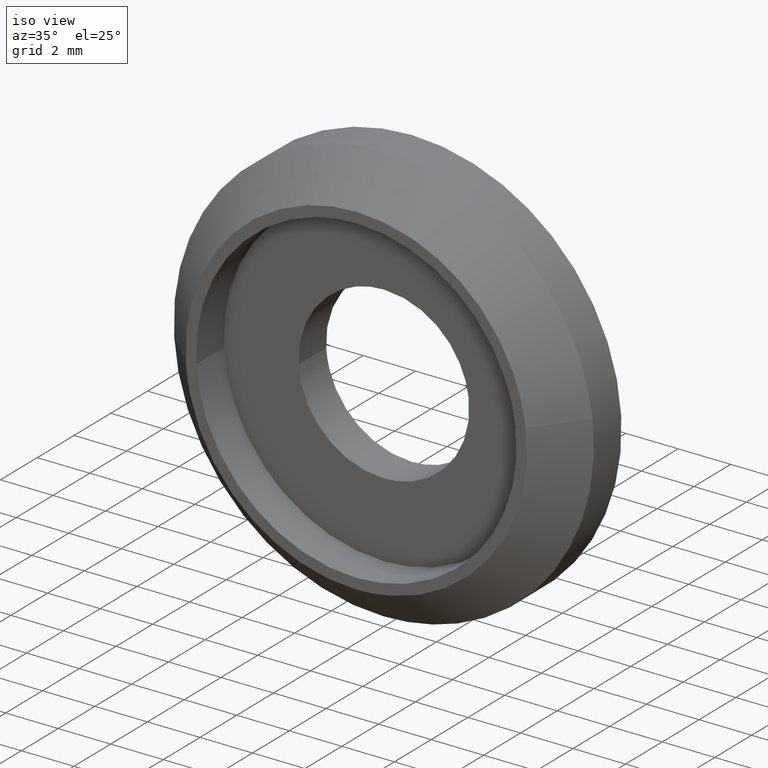
[diagram: clean part render]
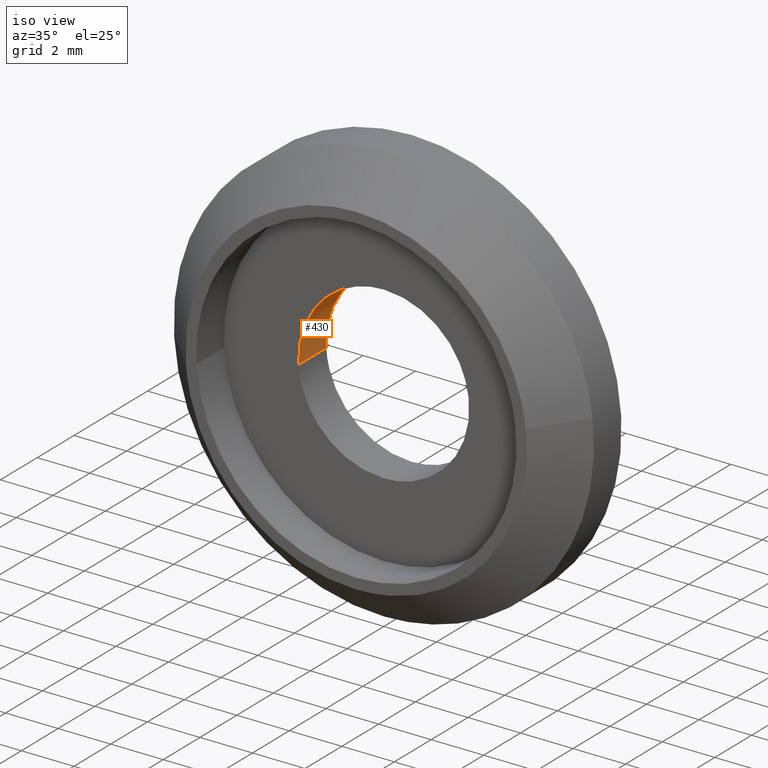
[diagram: same view with one face highlighted and labeled with its STEP entity id]
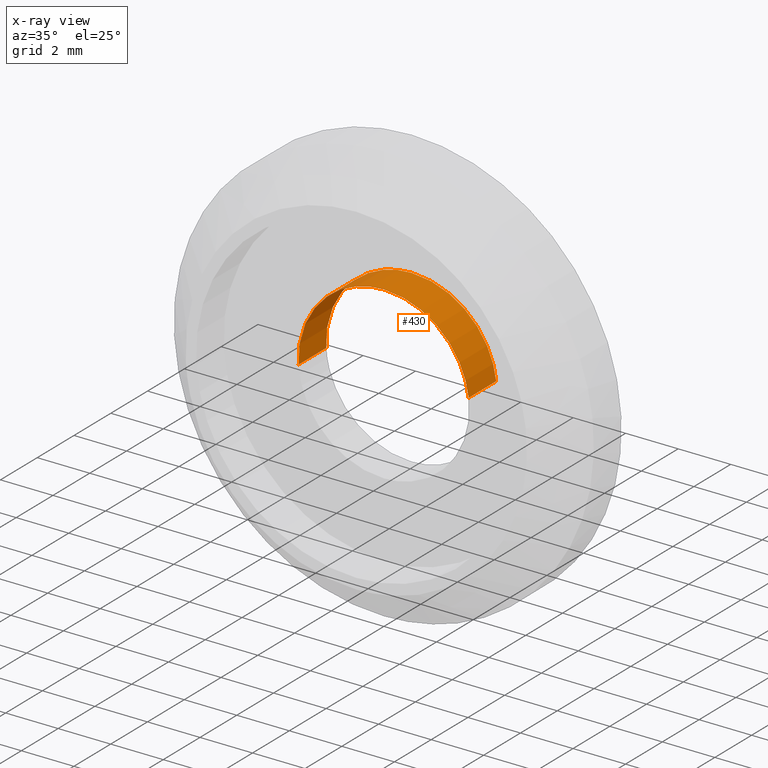
[diagram: x-ray of the same camera — body ghosted, the highlighted face saturated]
A machine part, iso view. The second image highlights one B-rep face of the part: STEP entity #430.
The next image is the same camera in x-ray: the body ghosted, the highlighted face saturated — about 0% of this face is hidden behind the body in this view.
In plain terms, the highlighted face is a freeform B-spline surface patch.
Its self-contained STEP definition (entity closure, byte-faithful):
#267=CARTESIAN_POINT('',(3.227281486811727,1.500000000000071,0.383606836308235));
#268=VERTEX_POINT('',#267);
#286=CARTESIAN_POINT('',(-3.243938286670342,1.499999999999952,-0.198404617548119));
#287=VERTEX_POINT('',#286);
#301=CARTESIAN_POINT('',(-3.243938284306497,3.469447E-017,-0.198404656197849));
#302=VERTEX_POINT('',#301);
#303=CARTESIAN_POINT('',(-3.243938284306497,3.469447E-017,-0.198404656197849));
#304=CARTESIAN_POINT('',(-3.243938286670342,1.499999999999952,-0.198404617548119));
#305=QUASI_UNIFORM_CURVE('',1,(#303,#304),.UNSPECIFIED.,.F.,.U.);
#306=EDGE_CURVE('',#302,#287,#305,.T.);
#323=CARTESIAN_POINT('',(3.227281480315944,3.194357E-017,0.383606890957840));
#324=VERTEX_POINT('',#323);
#340=CARTESIAN_POINT('',(3.227281480315944,3.194357E-017,0.383606890957840));
#341=CARTESIAN_POINT('',(3.227281486811727,1.500000000000071,0.383606836308235));
#342=QUASI_UNIFORM_CURVE('',1,(#340,#341),.UNSPECIFIED.,.F.,.U.);
#343=EDGE_CURVE('',#324,#268,#342,.T.);
#348=CARTESIAN_POINT('',(-3.243938094871067,-0.037500000000000,-0.198407753488285));
#349=CARTESIAN_POINT('',(-3.442345848359353,-0.037500000000000,3.045530341382781));
#350=CARTESIAN_POINT('',(-0.198407753488285,-0.037500000000000,3.243938094871067));
#351=CARTESIAN_POINT('',(2.865016345228379,-0.037500000000000,3.431305139380714));
#352=CARTESIAN_POINT('',(3.227280960681916,-0.037500000000000,0.383611262634465));
#353=CARTESIAN_POINT('',(-3.243938094871067,1.538437500000000,-0.198407753488285));
#354=CARTESIAN_POINT('',(-3.442345848359353,1.538437500000001,3.045530341382781));
#355=CARTESIAN_POINT('',(-0.198407753488285,1.538437500000000,3.243938094871067));
#356=CARTESIAN_POINT('',(2.865016345228379,1.538437500000000,3.431305139380714));
#357=CARTESIAN_POINT('',(3.227280960681916,1.538437500000000,0.383611262634465));
#365=(BOUNDED_SURFACE()B_SPLINE_SURFACE(2,1,((#348,#353),(#349,#354),(#350,#355),(#351,#356),(#352,#357)),.UNSPECIFIED.,.F.,.F.,.U.)B_SPLINE_SURFACE_WITH_KNOTS((3,2,3),(2,2),(0.0,5.384776310850235,10.554161569266460),(0.0,1.0),.UNSPECIFIED.)GEOMETRIC_REPRESENTATION_ITEM()RATIONAL_B_SPLINE_SURFACE(((1.0,1.0),(0.707106781186548,0.707106781186548),(1.0,1.0),(0.718822509939086,0.718822509939086),(0.977505800795127,0.977505800795127)))REPRESENTATION_ITEM('')SURFACE());
#366=CARTESIAN_POINT('',(0.0,1.500000000000000,3.250000000000000));
#367=VERTEX_POINT('',#366);
#368=CARTESIAN_POINT('',(0.0,1.500000000000000,3.250000000000000));
#369=CARTESIAN_POINT('',(2.886571196239680,1.500000000000001,3.250000000000000));
#370=CARTESIAN_POINT('',(3.227281486811727,1.500000000000071,0.383606836308235));
#378=(BOUNDED_CURVE()B_SPLINE_CURVE(2,(#368,#369,#370),.UNSPECIFIED.,.F.,.U.)B_SPLINE_CURVE_WITH_KNOTS((3,3),(0.0,0.229562705309400),.UNSPECIFIED.)CURVE()GEOMETRIC_REPRESENTATION_ITEM()RATIONAL_B_SPLINE_CURVE((1.0,0.731050561289623,0.956027208513637))REPRESENTATION_ITEM(''));
#379=EDGE_CURVE('',#367,#268,#378,.T.);
#380=ORIENTED_EDGE('',*,*,#379,.T.);
#381=ORIENTED_EDGE('',*,*,#343,.F.);
#382=CARTESIAN_POINT('',(0.0,0.0,3.250000000000000));
#383=VERTEX_POINT('',#382);
#384=CARTESIAN_POINT('',(0.0,0.0,3.250000000000000));
#385=CARTESIAN_POINT('',(2.886571147015454,0.0,3.250000000000000));
#386=CARTESIAN_POINT('',(3.227281480315944,3.194357E-017,0.383606890957840));
#394=(BOUNDED_CURVE()B_SPLINE_CURVE(2,(#384,#385,#386),.UNSPECIFIED.,.F.,.U.)B_SPLINE_CURVE_WITH_KNOTS((3,3),(0.0,0.229562702447560),.UNSPECIFIED.)CURVE()GEOMETRIC_REPRESENTATION_ITEM()RATIONAL_B_SPLINE_CURVE((1.0,0.731050564642477,0.956027202904301))REPRESENTATION_ITEM(''));
#395=EDGE_CURVE('',#383,#324,#394,.T.);
#396=ORIENTED_EDGE('',*,*,#395,.F.);
#397=CARTESIAN_POINT('',(-3.243938284306497,3.469447E-017,-0.198404656197849));
#398=CARTESIAN_POINT('',(-3.250000000000000,0.0,-0.099294927733059));
#399=CARTESIAN_POINT('',(-3.250000000000000,0.0,0.0));
#400=CARTESIAN_POINT('',(-3.250000000000000,0.0,3.250000000000000));
#401=CARTESIAN_POINT('',(0.0,0.0,3.250000000000000));
#409=(BOUNDED_CURVE()B_SPLINE_CURVE(2,(#397,#398,#399,#400,#401),.UNSPECIFIED.,.F.,.U.)B_SPLINE_CURVE_WITH_KNOTS((3,2,3),(0.739333126988512,0.750000000000000,1.0),.UNSPECIFIED.)CURVE()GEOMETRIC_REPRESENTATION_ITEM()RATIONAL_B_SPLINE_CURVE((0.976072394756659,0.987502980915963,1.0,0.707106781186547,1.0))REPRESENTATION_ITEM(''));
#410=EDGE_CURVE('',#302,#383,#409,.T.);
#411=ORIENTED_EDGE('',*,*,#410,.F.);
#412=ORIENTED_EDGE('',*,*,#306,.T.);
#413=CARTESIAN_POINT('',(-3.243938286670342,1.499999999999951,-0.198404617548119));
#414=CARTESIAN_POINT('',(-3.250000000000000,1.500000000000000,-0.099294908354011));
#415=CARTESIAN_POINT('',(-3.250000000000000,1.500000000000000,0.0));
#416=CARTESIAN_POINT('',(-3.250000000000000,1.500000000000000,3.250000000000000));
#417=CARTESIAN_POINT('',(0.0,1.500000000000000,3.250000000000000));
#425=(BOUNDED_CURVE()B_SPLINE_CURVE(2,(#413,#414,#415,#416,#417),.UNSPECIFIED.,.F.,.U.)B_SPLINE_CURVE_WITH_KNOTS((3,2,3),(0.739333129044312,0.750000000000000,1.0),.UNSPECIFIED.)CURVE()GEOMETRIC_REPRESENTATION_ITEM()RATIONAL_B_SPLINE_CURVE((0.976072399162636,0.987502983324483,1.0,0.707106781186547,1.0))REPRESENTATION_ITEM(''));
#426=EDGE_CURVE('',#287,#367,#425,.T.);
#427=ORIENTED_EDGE('',*,*,#426,.T.);
#428=EDGE_LOOP('',(#380,#381,#396,#411,#412,#427));
#429=FACE_OUTER_BOUND('',#428,.T.);
#430=ADVANCED_FACE('',(#429),#365,.F.);